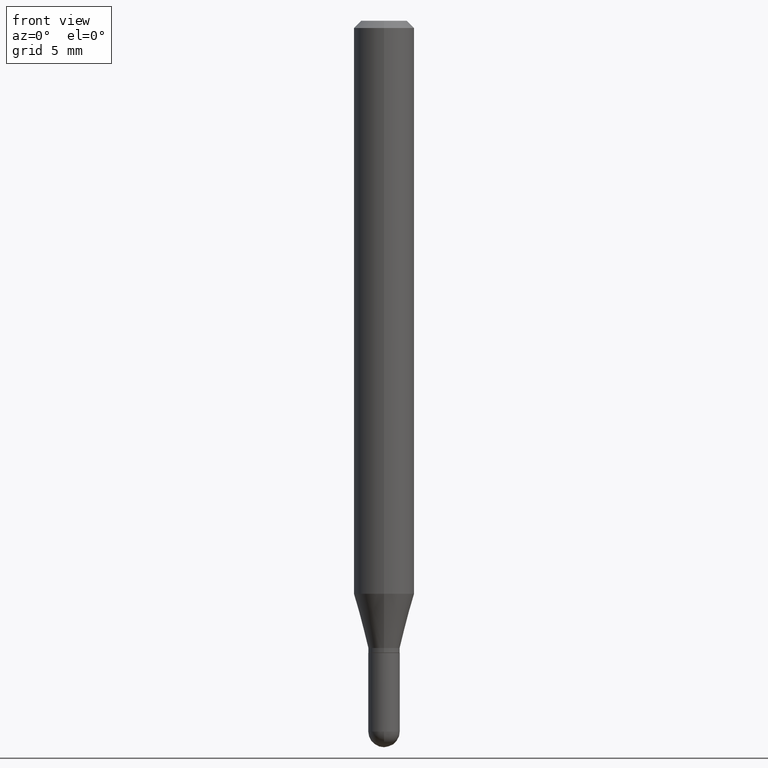
[diagram: clean part render]
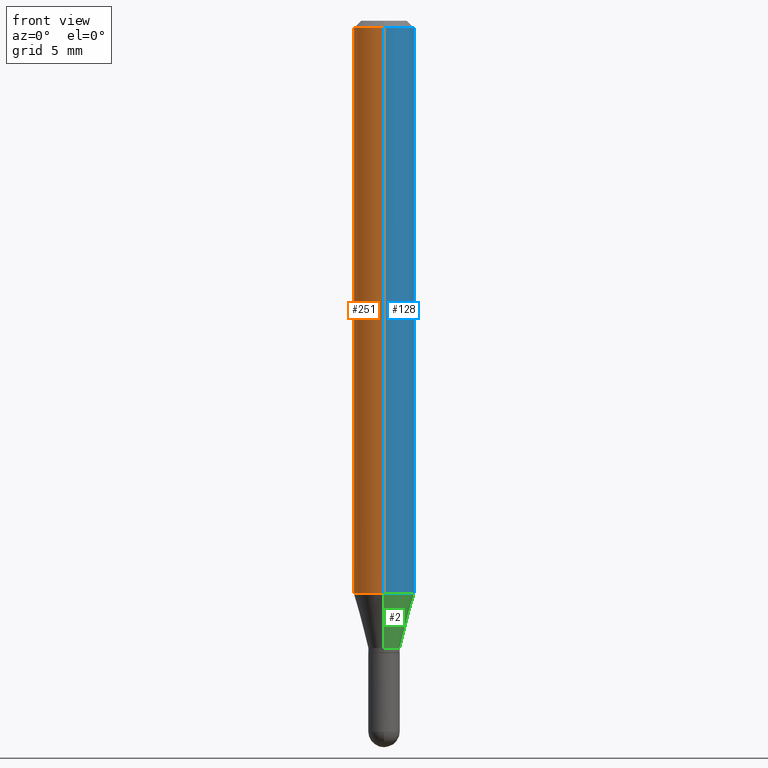
[diagram: same view with three faces highlighted in distinct colors, each labeled with its STEP entity id]
A machine part, front view with three faces highlighted in distinct colors.
Their STEP definitions:

[orange] entity #251 — the highlighted cylindrical surface (edge-blend (fillet) strip) has radius 1.5875 mm, axis along (-0, 0, 1).
#7 = DIRECTION ( 'NONE',  ( -2.445483904847070703E-29, 3.491459716699893676E-15, 1.000000000000000000 ) ) ;
#14 = CARTESIAN_POINT ( 'NONE',  ( 3.668225857270608366E-31, -5.237189575049843177E-17, -0.01500000000000000812 ) ) ;
#25 = EDGE_CURVE ( 'NONE', #87, #495, #62, .T. ) ;
#40 = CARTESIAN_POINT ( 'NONE',  ( 4.440892098500912124E-16, 0.06249999999999582972, -1.183038475772935527 ) ) ;
#42 = AXIS2_PLACEMENT_3D ( 'NONE', #408, #214, #101 ) ;
#45 = LINE ( 'NONE', #316, #94 ) ;
#62 = LINE ( 'NONE', #222, #511 ) ;
#69 = VERTEX_POINT ( 'NONE', #40 ) ;
#87 = VERTEX_POINT ( 'NONE', #504 ) ;
#94 = VECTOR ( 'NONE', #118, 39.37007874015748143 ) ;
#100 = DIRECTION ( 'NONE',  ( -2.445483904847070703E-29, 3.491459716699893676E-15, 1.000000000000000000 ) ) ;
#101 = DIRECTION ( 'NONE',  ( -6.982962677686265922E-15, -1.000000000000000000, 3.491459716699893676E-15 ) ) ;
#118 = DIRECTION ( 'NONE',  ( -2.445483904847070983E-29, 3.491459716699893676E-15, 1.000000000000000000 ) ) ;
#124 = DIRECTION ( 'NONE',  ( -6.982962677686265922E-15, -1.000000000000000000, 3.483106191921935554E-15 ) ) ;
#125 = EDGE_CURVE ( 'NONE', #69, #379, #45, .T. ) ;
#130 = DIRECTION ( 'NONE',  ( -6.982962677686265922E-15, -1.000000000000000000, 4.370956789862821150E-15 ) ) ;
#155 = ORIENTED_EDGE ( 'NONE', *, *, #25, .T. ) ;
#169 = CARTESIAN_POINT ( 'NONE',  ( -4.364351673553912750E-16, -0.06250000000000005551, -0.01499999999999979128 ) ) ;
#208 = CIRCLE ( 'NONE', #373, 0.06250000000000000000 ) ;
#214 = DIRECTION ( 'NONE',  ( -2.445483904847070703E-29, 3.491459716699893676E-15, 1.000000000000000000 ) ) ;
#222 = CARTESIAN_POINT ( 'NONE',  ( -4.364351673553916201E-16, -0.06250000000000000000, 2.182162322937433548E-16 ) ) ;
#251 = ADVANCED_FACE ( 'NONE', ( #374 ), #411, .T. ) ;
#271 = ORIENTED_EDGE ( 'NONE', *, *, #125, .F. ) ;
#316 = CARTESIAN_POINT ( 'NONE',  ( 4.440892098500625669E-16, 0.06250000000000000000, -2.182162322937433548E-16 ) ) ;
#346 = AXIS2_PLACEMENT_3D ( 'NONE', #14, #100, #124 ) ;
#349 = EDGE_LOOP ( 'NONE', ( #271, #441, #155, #380 ) ) ;
#366 = CARTESIAN_POINT ( 'NONE',  ( 2.893101551317524200E-29, -4.130531181467246054E-15, -1.183038475772935305 ) ) ;
#373 = AXIS2_PLACEMENT_3D ( 'NONE', #366, #7, #130 ) ;
#374 = FACE_OUTER_BOUND ( 'NONE', #349, .T. ) ;
#377 = DIRECTION ( 'NONE',  ( -2.445483904847070983E-29, 3.491459716699893676E-15, 1.000000000000000000 ) ) ;
#379 = VERTEX_POINT ( 'NONE', #422 ) ;
#380 = ORIENTED_EDGE ( 'NONE', *, *, #446, .F. ) ;
#408 = CARTESIAN_POINT ( 'NONE',  ( 0.000000000000000000, 0.000000000000000000, 0.000000000000000000 ) ) ;
#411 = CYLINDRICAL_SURFACE ( 'NONE', #42, 0.06250000000000000000 ) ;
#422 = CARTESIAN_POINT ( 'NONE',  ( 4.440892098500917054E-16, 0.06249999999999995143, -0.01500000000000022669 ) ) ;
#431 = CIRCLE ( 'NONE', #346, 0.06250000000000000000 ) ;
#441 = ORIENTED_EDGE ( 'NONE', *, *, #459, .T. ) ;
#446 = EDGE_CURVE ( 'NONE', #379, #495, #431, .T. ) ;
#459 = EDGE_CURVE ( 'NONE', #69, #87, #208, .T. ) ;
#495 = VERTEX_POINT ( 'NONE', #169 ) ;
#504 = CARTESIAN_POINT ( 'NONE',  ( -4.364351673553628760E-16, -0.06250000000000416334, -1.183038475772934861 ) ) ;
#511 = VECTOR ( 'NONE', #377, 39.37007874015748143 ) ;

[blue] entity #128 — the highlighted cylindrical surface (edge-blend (fillet) strip) has radius 1.5875 mm, axis along (-0, 0, 1).
#25 = EDGE_CURVE ( 'NONE', #87, #495, #62, .T. ) ;
#40 = CARTESIAN_POINT ( 'NONE',  ( 4.440892098500912124E-16, 0.06249999999999582972, -1.183038475772935527 ) ) ;
#45 = LINE ( 'NONE', #316, #94 ) ;
#53 = CIRCLE ( 'NONE', #116, 0.06250000000000000000 ) ;
#62 = LINE ( 'NONE', #222, #511 ) ;
#69 = VERTEX_POINT ( 'NONE', #40 ) ;
#87 = VERTEX_POINT ( 'NONE', #504 ) ;
#94 = VECTOR ( 'NONE', #118, 39.37007874015748143 ) ;
#116 = AXIS2_PLACEMENT_3D ( 'NONE', #166, #332, #445 ) ;
#118 = DIRECTION ( 'NONE',  ( -2.445483904847070983E-29, 3.491459716699893676E-15, 1.000000000000000000 ) ) ;
#120 = FACE_OUTER_BOUND ( 'NONE', #294, .T. ) ;
#125 = EDGE_CURVE ( 'NONE', #69, #379, #45, .T. ) ;
#128 = ADVANCED_FACE ( 'NONE', ( #120 ), #287, .T. ) ;
#149 = EDGE_CURVE ( 'NONE', #495, #379, #248, .T. ) ;
#166 = CARTESIAN_POINT ( 'NONE',  ( 2.893101551317524200E-29, -4.130531181467246054E-15, -1.183038475772935305 ) ) ;
#169 = CARTESIAN_POINT ( 'NONE',  ( -4.364351673553912750E-16, -0.06250000000000005551, -0.01499999999999979128 ) ) ;
#176 = ORIENTED_EDGE ( 'NONE', *, *, #149, .F. ) ;
#187 = ORIENTED_EDGE ( 'NONE', *, *, #498, .T. ) ;
#190 = AXIS2_PLACEMENT_3D ( 'NONE', #437, #203, #286 ) ;
#193 = DIRECTION ( 'NONE',  ( -2.445483904847070703E-29, 3.491459716699893676E-15, 1.000000000000000000 ) ) ;
#203 = DIRECTION ( 'NONE',  ( -2.445483904847070703E-29, 3.491459716699893676E-15, 1.000000000000000000 ) ) ;
#222 = CARTESIAN_POINT ( 'NONE',  ( -4.364351673553916201E-16, -0.06250000000000000000, 2.182162322937433548E-16 ) ) ;
#227 = AXIS2_PLACEMENT_3D ( 'NONE', #357, #193, #442 ) ;
#248 = CIRCLE ( 'NONE', #227, 0.06250000000000000000 ) ;
#286 = DIRECTION ( 'NONE',  ( -6.982962677686265922E-15, -1.000000000000000000, 3.491459716699893676E-15 ) ) ;
#287 = CYLINDRICAL_SURFACE ( 'NONE', #190, 0.06250000000000000000 ) ;
#294 = EDGE_LOOP ( 'NONE', ( #187, #502, #176, #467 ) ) ;
#316 = CARTESIAN_POINT ( 'NONE',  ( 4.440892098500625669E-16, 0.06250000000000000000, -2.182162322937433548E-16 ) ) ;
#332 = DIRECTION ( 'NONE',  ( -2.445483904847070703E-29, 3.491459716699893676E-15, 1.000000000000000000 ) ) ;
#357 = CARTESIAN_POINT ( 'NONE',  ( 3.668225857270608366E-31, -5.237189575049843177E-17, -0.01500000000000000812 ) ) ;
#377 = DIRECTION ( 'NONE',  ( -2.445483904847070983E-29, 3.491459716699893676E-15, 1.000000000000000000 ) ) ;
#379 = VERTEX_POINT ( 'NONE', #422 ) ;
#422 = CARTESIAN_POINT ( 'NONE',  ( 4.440892098500917054E-16, 0.06249999999999995143, -0.01500000000000022669 ) ) ;
#437 = CARTESIAN_POINT ( 'NONE',  ( 0.000000000000000000, 0.000000000000000000, 0.000000000000000000 ) ) ;
#442 = DIRECTION ( 'NONE',  ( -6.982962677686265922E-15, -1.000000000000000000, 3.483106191921935554E-15 ) ) ;
#445 = DIRECTION ( 'NONE',  ( -6.982962677686265922E-15, -1.000000000000000000, 4.370956789862821150E-15 ) ) ;
#467 = ORIENTED_EDGE ( 'NONE', *, *, #25, .F. ) ;
#495 = VERTEX_POINT ( 'NONE', #169 ) ;
#498 = EDGE_CURVE ( 'NONE', #87, #69, #53, .T. ) ;
#502 = ORIENTED_EDGE ( 'NONE', *, *, #125, .T. ) ;
#504 = CARTESIAN_POINT ( 'NONE',  ( -4.364351673553628760E-16, -0.06250000000000416334, -1.183038475772934861 ) ) ;
#511 = VECTOR ( 'NONE', #377, 39.37007874015748143 ) ;

[green] entity #2 — the highlighted conical surface has half-angle 15 deg.
#1 = CARTESIAN_POINT ( 'NONE',  ( -2.269462870247733265E-16, -0.03250000000000471262, -1.295000000000000151 ) ) ;
#2 = ADVANCED_FACE ( 'NONE', ( #304 ), #237, .T. ) ;
#4 = ORIENTED_EDGE ( 'NONE', *, *, #117, .T. ) ;
#8 = AXIS2_PLACEMENT_3D ( 'NONE', #371, #413, #268 ) ;
#40 = CARTESIAN_POINT ( 'NONE',  ( 4.440892098500912124E-16, 0.06249999999999582972, -1.183038475772935527 ) ) ;
#53 = CIRCLE ( 'NONE', #116, 0.06250000000000000000 ) ;
#59 = CIRCLE ( 'NONE', #311, 0.03250000000000018846 ) ;
#60 = VECTOR ( 'NONE', #479, 39.37007874015748143 ) ;
#69 = VERTEX_POINT ( 'NONE', #40 ) ;
#70 = LINE ( 'NONE', #362, #60 ) ;
#82 = CARTESIAN_POINT ( 'NONE',  ( 3.166901656776957032E-29, -4.521440333126363352E-15, -1.295000000000000151 ) ) ;
#87 = VERTEX_POINT ( 'NONE', #504 ) ;
#112 = DIRECTION ( 'NONE',  ( -2.445483904847070703E-29, 3.491459716699893676E-15, 1.000000000000000000 ) ) ;
#114 = CARTESIAN_POINT ( 'NONE',  ( 3.375077994860785550E-16, 0.03249999999999567124, -1.295000000000000151 ) ) ;
#116 = AXIS2_PLACEMENT_3D ( 'NONE', #166, #332, #445 ) ;
#117 = EDGE_CURVE ( 'NONE', #424, #341, #59, .T. ) ;
#166 = CARTESIAN_POINT ( 'NONE',  ( 2.893101551317524200E-29, -4.130531181467246054E-15, -1.183038475772935305 ) ) ;
#183 = ORIENTED_EDGE ( 'NONE', *, *, #420, .T. ) ;
#185 = CARTESIAN_POINT ( 'NONE',  ( 2.309263891220655525E-16, 0.03249999999999567124, -1.295000000000000151 ) ) ;
#219 = VECTOR ( 'NONE', #350, 39.37007874015748143 ) ;
#237 = CONICAL_SURFACE ( 'NONE', #8, 0.03250000000000018846, 0.2617993877991506846 ) ;
#268 = DIRECTION ( 'NONE',  ( -6.982962677686266711E-15, -1.000000000000000000, 0.000000000000000000 ) ) ;
#277 = DIRECTION ( 'NONE',  ( -6.982962677686266711E-15, -1.000000000000000000, 0.000000000000000000 ) ) ;
#278 = EDGE_LOOP ( 'NONE', ( #4, #183, #317, #421 ) ) ;
#292 = LINE ( 'NONE', #185, #219 ) ;
#304 = FACE_OUTER_BOUND ( 'NONE', #278, .T. ) ;
#306 = EDGE_CURVE ( 'NONE', #424, #87, #70, .T. ) ;
#311 = AXIS2_PLACEMENT_3D ( 'NONE', #82, #112, #277 ) ;
#317 = ORIENTED_EDGE ( 'NONE', *, *, #498, .F. ) ;
#332 = DIRECTION ( 'NONE',  ( -2.445483904847070703E-29, 3.491459716699893676E-15, 1.000000000000000000 ) ) ;
#341 = VERTEX_POINT ( 'NONE', #114 ) ;
#350 = DIRECTION ( 'NONE',  ( 1.839019923739603076E-15, 0.2588190451025253469, 0.9659258262890670910 ) ) ;
#362 = CARTESIAN_POINT ( 'NONE',  ( -2.269462870247733265E-16, -0.03250000000000471262, -1.295000000000000151 ) ) ;
#371 = CARTESIAN_POINT ( 'NONE',  ( 3.166901656776957032E-29, -4.521440333126363352E-15, -1.295000000000000151 ) ) ;
#413 = DIRECTION ( 'NONE',  ( -2.445483904847070703E-29, 3.491459716699893676E-15, 1.000000000000000000 ) ) ;
#420 = EDGE_CURVE ( 'NONE', #341, #69, #292, .T. ) ;
#421 = ORIENTED_EDGE ( 'NONE', *, *, #306, .F. ) ;
#424 = VERTEX_POINT ( 'NONE', #1 ) ;
#445 = DIRECTION ( 'NONE',  ( -6.982962677686265922E-15, -1.000000000000000000, 4.370956789862821150E-15 ) ) ;
#479 = DIRECTION ( 'NONE',  ( -1.807323732225332900E-15, -0.2588190451025185745, 0.9659258262890689783 ) ) ;
#498 = EDGE_CURVE ( 'NONE', #87, #69, #53, .T. ) ;
#504 = CARTESIAN_POINT ( 'NONE',  ( -4.364351673553628760E-16, -0.06250000000000416334, -1.183038475772934861 ) ) ;